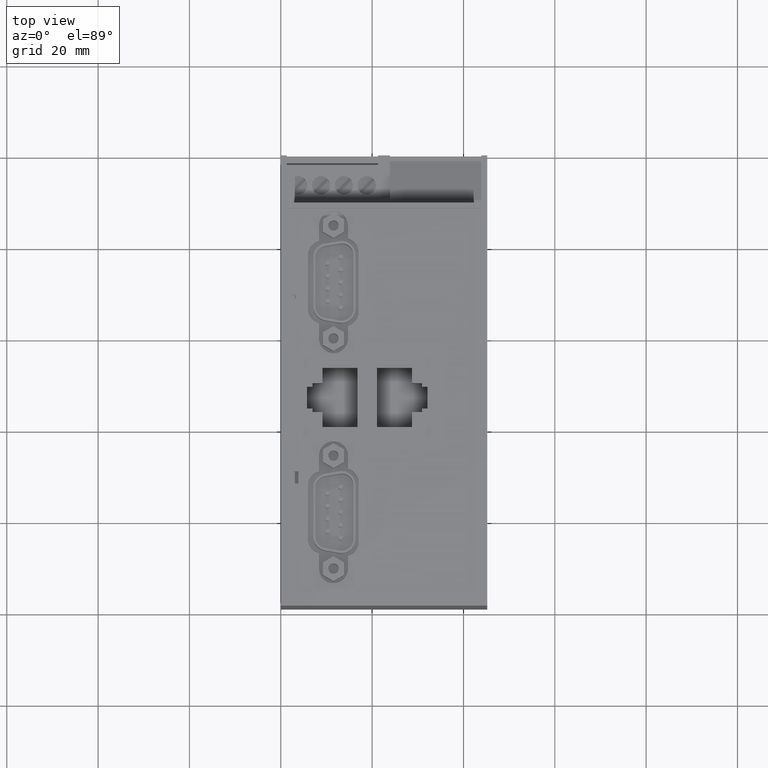
[diagram: clean part render]
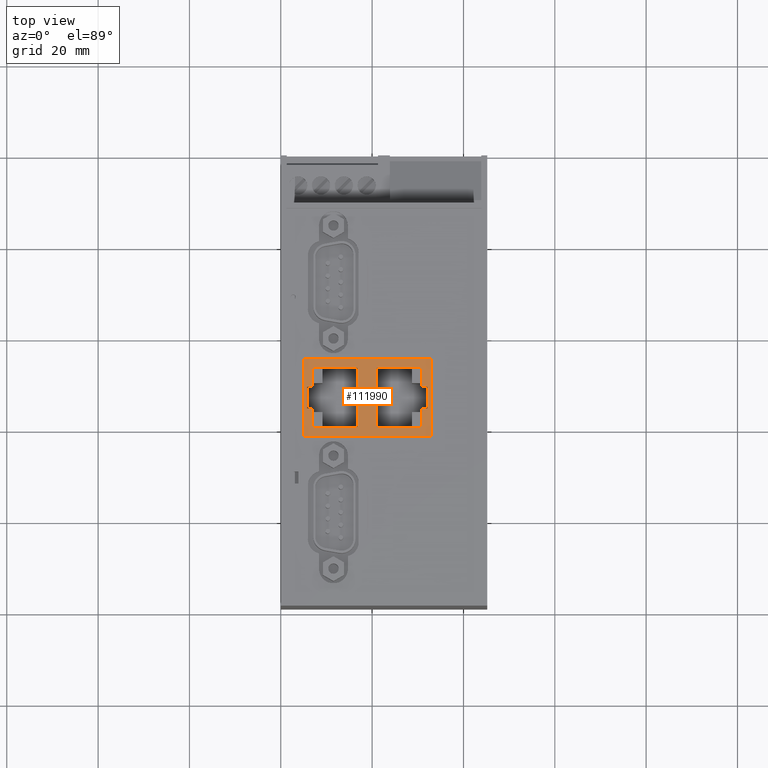
[diagram: same view with one face highlighted and labeled with its STEP entity id]
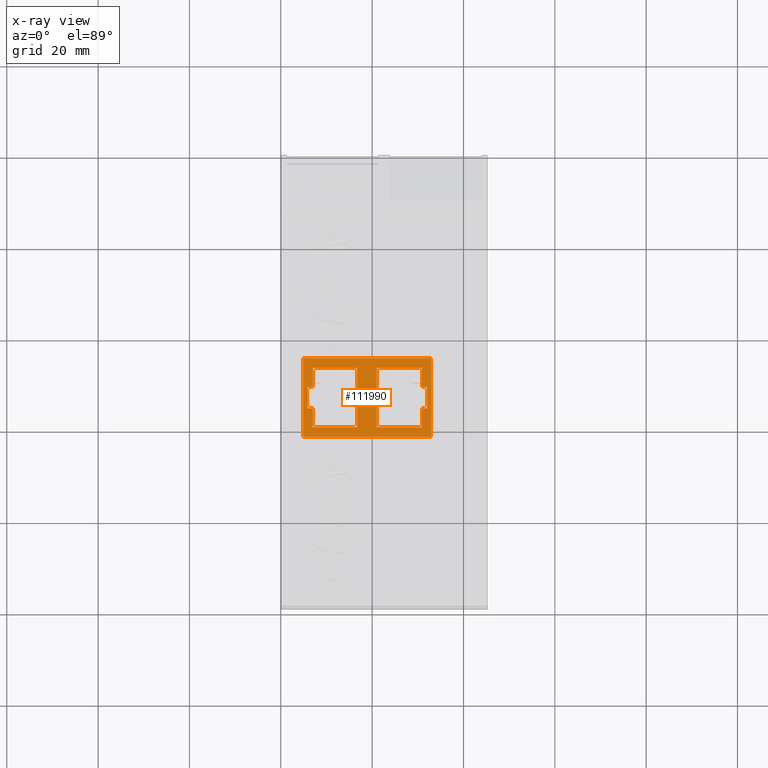
[diagram: x-ray of the same camera — body ghosted, the highlighted face saturated]
A machine part, top view. The second image highlights one B-rep face of the part: STEP entity #111990.
The next image is the same camera in x-ray: the body ghosted, the highlighted face saturated — about 0% of this face is hidden behind the body in this view.
In plain terms, the highlighted planar face has unit normal (-0, 0, 1).
Its self-contained STEP definition (entity closure, byte-faithful):
#109600=CARTESIAN_POINT('',(-30.0154000000171,106.600000000012,
-6.38539999995358));
#109610=VERTEX_POINT('',#109600);
#109690=CARTESIAN_POINT('',(-12.8154000000171,106.6,-6.38539999995358));
#109700=VERTEX_POINT('',#109690);
#109730=CARTESIAN_POINT('',(40.4,106.59999999996,-6.38539999995358));
#109740=DIRECTION('',(1.,-7.38964445188328E-13,-0.));
#109750=VECTOR('',#109740,1.);
#109760=LINE('',#109730,#109750);
#109770=EDGE_CURVE('',#109610,#109700,#109760,.T.);
#109940=CARTESIAN_POINT('',(40.4,106.59999999996,21.6146000000464));
#109950=DIRECTION('',(-1.,7.38964445188328E-13,0.));
#109960=VECTOR('',#109950,1.);
#109970=LINE('',#109940,#109960);
#109980=CARTESIAN_POINT('',(-12.8154000000171,106.6,21.6146000000464));
#109990=VERTEX_POINT('',#109980);
#110000=CARTESIAN_POINT('',(-30.0154000000171,106.600000000012,
21.6146000000464));
#110010=VERTEX_POINT('',#110000);
#110020=EDGE_CURVE('',#109990,#110010,#109970,.T.);
#110330=CARTESIAN_POINT('',(-12.8154000000171,106.6,8.10559999999358));
#110340=DIRECTION('',(-6.47576724517151E-37,-8.76330016597908E-25,-1.));
#110350=VECTOR('',#110340,1.);
#110360=LINE('',#110330,#110350);
#110370=EDGE_CURVE('',#109990,#109700,#110360,.T.);
#110510=CARTESIAN_POINT('',(-6.15000000004601,106.599999999995,
15.2292000000189));
#110520=DIRECTION('',(7.38964445188328E-13,1.,-8.76380075283861E-25));
#110530=DIRECTION('',(1.,-7.38964445188328E-13,-0.));
#110540=AXIS2_PLACEMENT_3D('',#110510,#110520,#110530);
#110550=PLANE('',#110540);
#110560=CARTESIAN_POINT('',(-19.0154000000174,106.600000000004,
26.5292000000928));
#110570=DIRECTION('',(-1.52810122839464E-14,8.87673622208996E-25,1.));
#110580=VECTOR('',#110570,1.);
#110590=LINE('',#110560,#110580);
#110600=CARTESIAN_POINT('',(-19.0154000000173,106.600000000004,
19.5758003542371));
#110610=VERTEX_POINT('',#110600);
#110620=CARTESIAN_POINT('',(-19.0154000000173,106.600000000004,
20.7758003542371));
#110630=VERTEX_POINT('',#110620);
#110640=EDGE_CURVE('',#110610,#110630,#110590,.T.);
#110650=ORIENTED_EDGE('',*,*,#110640,.T.);
#110660=CARTESIAN_POINT('',(40.4,106.59999999996,19.575800354238));
#110670=DIRECTION('',(-1.,7.38964445188328E-13,-1.52810122827484E-14));
#110680=VECTOR('',#110670,1.);
#110690=LINE('',#110660,#110680);
#110700=CARTESIAN_POINT('',(-14.8954000000173,106.600000000001,
19.5758003542371));
#110710=VERTEX_POINT('',#110700);
#110720=EDGE_CURVE('',#110710,#110610,#110690,.T.);
#110730=ORIENTED_EDGE('',*,*,#110720,.T.);
#110740=CARTESIAN_POINT('',(-14.8954000000174,106.600000000001,
26.5292000000928));
#110750=DIRECTION('',(-1.52810122839464E-14,8.87673622208996E-25,1.));
#110760=VECTOR('',#110750,1.);
#110770=LINE('',#110740,#110760);
#110780=CARTESIAN_POINT('',(-14.8954000000171,106.600000000001,
9.72580035423711));
#110790=VERTEX_POINT('',#110780);
#110800=EDGE_CURVE('',#110790,#110710,#110770,.T.);
#110810=ORIENTED_EDGE('',*,*,#110800,.T.);
#110820=CARTESIAN_POINT('',(40.4,106.59999999996,9.72580035423796));
#110830=DIRECTION('',(1.,-7.38964445188328E-13,1.52810122827484E-14));
#110840=VECTOR('',#110830,1.);
#110850=LINE('',#110820,#110840);
#110860=CARTESIAN_POINT('',(-27.9354000000172,106.600000000011,
9.72580035423691));
#110870=VERTEX_POINT('',#110860);
#110880=EDGE_CURVE('',#110870,#110790,#110850,.T.);
#110890=ORIENTED_EDGE('',*,*,#110880,.T.);
#110900=CARTESIAN_POINT('',(-27.9354000000174,106.600000000011,
26.5292000000928));
#110910=DIRECTION('',(1.52810122839464E-14,-8.87673622208996E-25,-1.));
#110920=VECTOR('',#110910,1.);
#110930=LINE('',#110900,#110920);
#110940=CARTESIAN_POINT('',(-27.9354000000173,106.600000000011,
19.575800354237));
#110950=VERTEX_POINT('',#110940);
#110960=EDGE_CURVE('',#110950,#110870,#110930,.T.);
#110970=ORIENTED_EDGE('',*,*,#110960,.T.);
#110980=CARTESIAN_POINT('',(40.4,106.59999999996,19.575800354238));
#110990=DIRECTION('',(-1.,7.38964445188328E-13,-1.52810122827484E-14));
#111000=VECTOR('',#110990,1.);
#111010=LINE('',#110980,#111000);
#111020=CARTESIAN_POINT('',(-23.8154000000173,106.600000000008,
19.5758003542371));
#111030=VERTEX_POINT('',#111020);
#111040=EDGE_CURVE('',#111030,#110950,#111010,.T.);
#111050=ORIENTED_EDGE('',*,*,#111040,.T.);
#111060=CARTESIAN_POINT('',(-23.8154000000174,106.600000000008,
26.5292000000928));
#111070=DIRECTION('',(1.52810122839464E-14,-8.87673622208996E-25,-1.));
#111080=VECTOR('',#111070,1.);
#111090=LINE('',#111060,#111080);
#111100=CARTESIAN_POINT('',(-23.8154000000173,106.600000000008,
20.775800354237));
#111110=VERTEX_POINT('',#111100);
#111120=EDGE_CURVE('',#111110,#111030,#111090,.T.);
#111130=ORIENTED_EDGE('',*,*,#111120,.T.);
#111140=CARTESIAN_POINT('',(40.4,106.59999999996,20.775800354238));
#111150=DIRECTION('',(-1.,7.38964445188328E-13,-1.52810122827484E-14));
#111160=VECTOR('',#111150,1.);
#111170=LINE('',#111140,#111160);
#111180=EDGE_CURVE('',#110630,#111110,#111170,.T.);
#111190=ORIENTED_EDGE('',*,*,#111180,.T.);
#111200=EDGE_LOOP('',(#111190,#111130,#111050,#110970,#110890,#110810,
#110730,#110650));
#111210=FACE_BOUND('',#111200,.T.);
#111220=CARTESIAN_POINT('',(-30.0154000000171,106.600000000012,
-6.34700000000642));
#111230=DIRECTION('',(6.47576724517151E-37,8.76330016597908E-25,1.));
#111240=VECTOR('',#111230,1.);
#111250=LINE('',#111220,#111240);
#111260=EDGE_CURVE('',#109610,#110010,#111250,.T.);
#111270=ORIENTED_EDGE('',*,*,#111260,.T.);
#111280=ORIENTED_EDGE('',*,*,#109770,.F.);
#111290=ORIENTED_EDGE('',*,*,#110370,.T.);
#111300=ORIENTED_EDGE('',*,*,#110020,.F.);
#111310=EDGE_LOOP('',(#111300,#111290,#111280,#111270));
#111320=FACE_OUTER_BOUND('',#111310,.T.);
#111330=CARTESIAN_POINT('',(40.4,106.59999999996,-5.54660035414512));
#111340=DIRECTION('',(1.,-7.38964445188328E-13,-1.52810122827484E-14));
#111350=VECTOR('',#111340,1.);
#111360=LINE('',#111330,#111350);
#111370=CARTESIAN_POINT('',(-23.8154000000173,106.600000000008,
-5.54660035414414));
#111380=VERTEX_POINT('',#111370);
#111390=CARTESIAN_POINT('',(-19.0154000000173,106.600000000004,
-5.54660035414421));
#111400=VERTEX_POINT('',#111390);
#111410=EDGE_CURVE('',#111380,#111400,#111360,.T.);
#111420=ORIENTED_EDGE('',*,*,#111410,.T.);
#111430=CARTESIAN_POINT('',(-23.8154000000174,106.600000000008,-11.3));
#111440=DIRECTION('',(-1.52810122839464E-14,-8.65036469672774E-25,-1.));
#111450=VECTOR('',#111440,1.);
#111460=LINE('',#111430,#111450);
#111470=CARTESIAN_POINT('',(-23.8154000000173,106.600000000008,
-4.34660035414422));
#111480=VERTEX_POINT('',#111470);
#111490=EDGE_CURVE('',#111480,#111380,#111460,.T.);
#111500=ORIENTED_EDGE('',*,*,#111490,.T.);
#111510=CARTESIAN_POINT('',(40.4,106.59999999996,-4.3466003541452));
#111520=DIRECTION('',(1.,-7.38964445188328E-13,-1.52810122827484E-14));
#111530=VECTOR('',#111520,1.);
#111540=LINE('',#111510,#111530);
#111550=CARTESIAN_POINT('',(-27.9354000000173,106.600000000011,
-4.34660035414415));
#111560=VERTEX_POINT('',#111550);
#111570=EDGE_CURVE('',#111560,#111480,#111540,.T.);
#111580=ORIENTED_EDGE('',*,*,#111570,.T.);
#111590=CARTESIAN_POINT('',(-27.9354000000174,106.600000000011,-11.3));
#111600=DIRECTION('',(-1.52810122839464E-14,-8.65036469672774E-25,-1.));
#111610=VECTOR('',#111600,1.);
#111620=LINE('',#111590,#111610);
#111630=CARTESIAN_POINT('',(-27.9354000000172,106.600000000011,
5.50339964585593));
#111640=VERTEX_POINT('',#111630);
#111650=EDGE_CURVE('',#111640,#111560,#111620,.T.);
#111660=ORIENTED_EDGE('',*,*,#111650,.T.);
#111670=CARTESIAN_POINT('',(40.4,106.59999999996,5.50339964585488));
#111680=DIRECTION('',(-1.,7.38964445188328E-13,1.52810122827484E-14));
#111690=VECTOR('',#111680,1.);
#111700=LINE('',#111670,#111690);
#111710=CARTESIAN_POINT('',(-14.8954000000171,106.600000000001,
5.50339964585573));
#111720=VERTEX_POINT('',#111710);
#111730=EDGE_CURVE('',#111720,#111640,#111700,.T.);
#111740=ORIENTED_EDGE('',*,*,#111730,.T.);
#111750=CARTESIAN_POINT('',(-14.8954000000174,106.600000000001,-11.3));
#111760=DIRECTION('',(1.52810122839464E-14,8.65036469672774E-25,1.));
#111770=VECTOR('',#111760,1.);
#111780=LINE('',#111750,#111770);
#111790=CARTESIAN_POINT('',(-14.8954000000172,106.600000000001,
-4.34660035414428));
#111800=VERTEX_POINT('',#111790);
#111810=EDGE_CURVE('',#111800,#111720,#111780,.T.);
#111820=ORIENTED_EDGE('',*,*,#111810,.T.);
#111830=CARTESIAN_POINT('',(40.4,106.59999999996,-4.34660035414512));
#111840=DIRECTION('',(1.,-7.38964445188328E-13,-1.52810122827484E-14));
#111850=VECTOR('',#111840,1.);
#111860=LINE('',#111830,#111850);
#111870=CARTESIAN_POINT('',(-19.0154000000173,106.600000000004,
-4.34660035414421));
#111880=VERTEX_POINT('',#111870);
#111890=EDGE_CURVE('',#111880,#111800,#111860,.T.);
#111900=ORIENTED_EDGE('',*,*,#111890,.T.);
#111910=CARTESIAN_POINT('',(-19.0154000000174,106.600000000004,-11.3));
#111920=DIRECTION('',(1.52810122839464E-14,8.65036469672774E-25,1.));
#111930=VECTOR('',#111920,1.);
#111940=LINE('',#111910,#111930);
#111950=EDGE_CURVE('',#111400,#111880,#111940,.T.);
#111960=ORIENTED_EDGE('',*,*,#111950,.T.);
#111970=EDGE_LOOP('',(#111960,#111900,#111820,#111740,#111660,#111580,
#111500,#111420));
#111980=FACE_BOUND('',#111970,.T.);
#111990=ADVANCED_FACE('',(#111210,#111320,#111980),#110550,.T.);